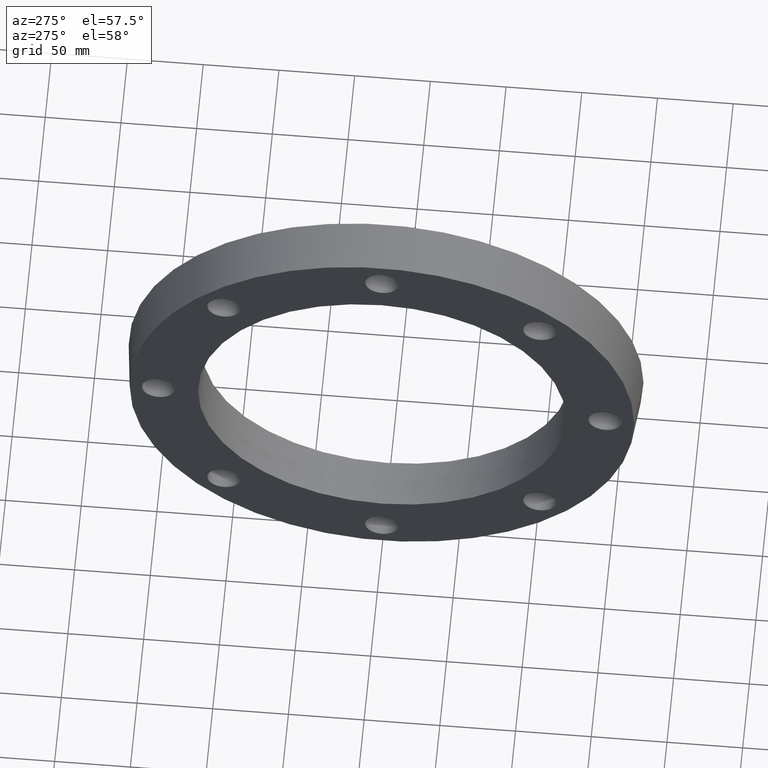
[diagram: clean part render]
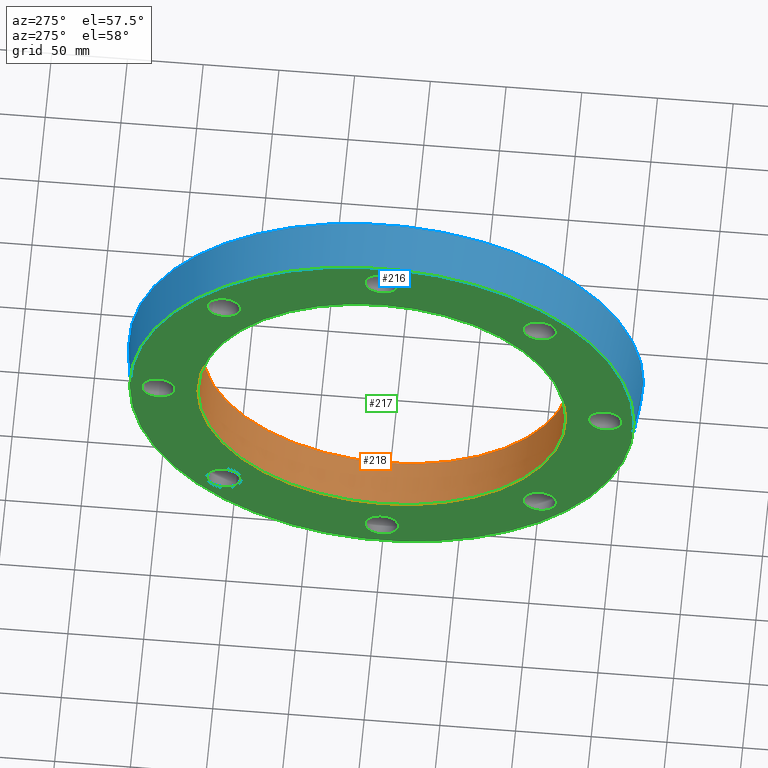
[diagram: same view with three faces highlighted in distinct colors, each labeled with its STEP entity id]
A machine part, auxiliary view with three faces highlighted in distinct colors.
Their STEP definitions:

[orange] entity #218 — the highlighted cylindrical surface (bore or boss wall) has radius 121.5 mm, axis along (-1, 0, 0).
#45=FACE_BOUND('',#97,.T.);
#57=FACE_OUTER_BOUND('',#96,.T.);
#96=EDGE_LOOP('',(#196));
#97=EDGE_LOOP('',(#197));
#115=CIRCLE('',#247,121.5);
#117=CIRCLE('',#251,121.5);
#135=VERTEX_POINT('',#363);
#137=VERTEX_POINT('',#369);
#155=EDGE_CURVE('',#135,#135,#115,.T.);
#157=EDGE_CURVE('',#137,#137,#117,.T.);
#196=ORIENTED_EDGE('',*,*,#155,.F.);
#197=ORIENTED_EDGE('',*,*,#157,.T.);
#206=CYLINDRICAL_SURFACE('',#252,121.5);
#218=ADVANCED_FACE('',(#57,#45),#206,.F.);
#247=AXIS2_PLACEMENT_3D('',#364,#307,#308);
#251=AXIS2_PLACEMENT_3D('',#370,#315,#316);
#252=AXIS2_PLACEMENT_3D('',#371,#317,#318);
#307=DIRECTION('center_axis',(-1.,0.,0.));
#308=DIRECTION('ref_axis',(0.,0.,1.));
#315=DIRECTION('center_axis',(-1.,0.,0.));
#316=DIRECTION('ref_axis',(0.,0.,1.));
#317=DIRECTION('center_axis',(-1.,0.,0.));
#318=DIRECTION('ref_axis',(0.,-1.,0.));
#363=CARTESIAN_POINT('',(16.,-121.5,0.));
#364=CARTESIAN_POINT('Origin',(16.,0.,0.));
#369=CARTESIAN_POINT('',(-16.,-121.5,0.));
#370=CARTESIAN_POINT('Origin',(-16.,0.,0.));
#371=CARTESIAN_POINT('Origin',(0.,0.,0.));

[blue] entity #216 — the highlighted conical surface has half-angle 6.065 deg.
#15=CONICAL_SURFACE('',#248,168.3,6.06492244544795);
#35=FACE_BOUND('',#85,.T.);
#55=FACE_OUTER_BOUND('',#84,.T.);
#84=EDGE_LOOP('',(#184));
#85=EDGE_LOOP('',(#185));
#114=CIRCLE('',#246,170.);
#116=CIRCLE('',#249,166.6);
#134=VERTEX_POINT('',#361);
#136=VERTEX_POINT('',#366);
#154=EDGE_CURVE('',#134,#134,#114,.T.);
#156=EDGE_CURVE('',#136,#136,#116,.T.);
#184=ORIENTED_EDGE('',*,*,#156,.F.);
#185=ORIENTED_EDGE('',*,*,#154,.T.);
#216=ADVANCED_FACE('',(#55,#35),#15,.T.);
#246=AXIS2_PLACEMENT_3D('',#362,#305,#306);
#248=AXIS2_PLACEMENT_3D('',#365,#309,#310);
#249=AXIS2_PLACEMENT_3D('',#367,#311,#312);
#305=DIRECTION('center_axis',(-1.,0.,0.));
#306=DIRECTION('ref_axis',(0.,0.,1.));
#309=DIRECTION('center_axis',(1.,0.,0.));
#310=DIRECTION('ref_axis',(0.,-1.,0.));
#311=DIRECTION('center_axis',(-1.,0.,0.));
#312=DIRECTION('ref_axis',(0.,0.,1.));
#361=CARTESIAN_POINT('',(16.,-170.,0.));
#362=CARTESIAN_POINT('Origin',(16.,0.,0.));
#365=CARTESIAN_POINT('Origin',(1.33226762955019E-14,0.,0.));
#366=CARTESIAN_POINT('',(-16.,-166.6,0.));
#367=CARTESIAN_POINT('Origin',(-16.,0.,0.));

[green] entity #217 — the highlighted planar face has unit normal (-1, 0, 0).
#17=PLANE('',#250);
#36=FACE_BOUND('',#87,.T.);
#37=FACE_BOUND('',#88,.T.);
#38=FACE_BOUND('',#89,.T.);
#39=FACE_BOUND('',#90,.T.);
#40=FACE_BOUND('',#91,.T.);
#41=FACE_BOUND('',#92,.T.);
#42=FACE_BOUND('',#93,.T.);
#43=FACE_BOUND('',#94,.T.);
#44=FACE_BOUND('',#95,.T.);
#56=FACE_OUTER_BOUND('',#86,.T.);
#86=EDGE_LOOP('',(#186));
#87=EDGE_LOOP('',(#187));
#88=EDGE_LOOP('',(#188));
#89=EDGE_LOOP('',(#189));
#90=EDGE_LOOP('',(#190));
#91=EDGE_LOOP('',(#191));
#92=EDGE_LOOP('',(#192));
#93=EDGE_LOOP('',(#193));
#94=EDGE_LOOP('',(#194));
#95=EDGE_LOOP('',(#195));
#98=CIRCLE('',#222,11.);
#100=CIRCLE('',#225,11.);
#102=CIRCLE('',#228,11.);
#104=CIRCLE('',#231,11.);
#106=CIRCLE('',#234,11.);
#108=CIRCLE('',#237,11.);
#110=CIRCLE('',#240,11.);
#112=CIRCLE('',#243,11.);
#116=CIRCLE('',#249,166.6);
#117=CIRCLE('',#251,121.5);
#118=VERTEX_POINT('',#321);
#120=VERTEX_POINT('',#326);
#122=VERTEX_POINT('',#331);
#124=VERTEX_POINT('',#336);
#126=VERTEX_POINT('',#341);
#128=VERTEX_POINT('',#346);
#130=VERTEX_POINT('',#351);
#132=VERTEX_POINT('',#356);
#136=VERTEX_POINT('',#366);
#137=VERTEX_POINT('',#369);
#138=EDGE_CURVE('',#118,#118,#98,.T.);
#140=EDGE_CURVE('',#120,#120,#100,.T.);
#142=EDGE_CURVE('',#122,#122,#102,.T.);
#144=EDGE_CURVE('',#124,#124,#104,.T.);
#146=EDGE_CURVE('',#126,#126,#106,.T.);
#148=EDGE_CURVE('',#128,#128,#108,.T.);
#150=EDGE_CURVE('',#130,#130,#110,.T.);
#152=EDGE_CURVE('',#132,#132,#112,.T.);
#156=EDGE_CURVE('',#136,#136,#116,.T.);
#157=EDGE_CURVE('',#137,#137,#117,.T.);
#186=ORIENTED_EDGE('',*,*,#156,.T.);
#187=ORIENTED_EDGE('',*,*,#138,.T.);
#188=ORIENTED_EDGE('',*,*,#140,.T.);
#189=ORIENTED_EDGE('',*,*,#142,.T.);
#190=ORIENTED_EDGE('',*,*,#144,.T.);
#191=ORIENTED_EDGE('',*,*,#146,.T.);
#192=ORIENTED_EDGE('',*,*,#148,.T.);
#193=ORIENTED_EDGE('',*,*,#150,.T.);
#194=ORIENTED_EDGE('',*,*,#152,.T.);
#195=ORIENTED_EDGE('',*,*,#157,.F.);
#217=ADVANCED_FACE('',(#56,#36,#37,#38,#39,#40,#41,#42,#43,#44),#17,.T.);
#222=AXIS2_PLACEMENT_3D('',#322,#257,#258);
#225=AXIS2_PLACEMENT_3D('',#327,#263,#264);
#228=AXIS2_PLACEMENT_3D('',#332,#269,#270);
#231=AXIS2_PLACEMENT_3D('',#337,#275,#276);
#234=AXIS2_PLACEMENT_3D('',#342,#281,#282);
#237=AXIS2_PLACEMENT_3D('',#347,#287,#288);
#240=AXIS2_PLACEMENT_3D('',#352,#293,#294);
#243=AXIS2_PLACEMENT_3D('',#357,#299,#300);
#249=AXIS2_PLACEMENT_3D('',#367,#311,#312);
#250=AXIS2_PLACEMENT_3D('',#368,#313,#314);
#251=AXIS2_PLACEMENT_3D('',#370,#315,#316);
#257=DIRECTION('center_axis',(1.,0.,0.));
#258=DIRECTION('ref_axis',(0.,-0.707106781186548,0.707106781186547));
#263=DIRECTION('center_axis',(1.,0.,0.));
#264=DIRECTION('ref_axis',(0.,-1.,-2.01858731750028E-16));
#269=DIRECTION('center_axis',(1.,0.,0.));
#270=DIRECTION('ref_axis',(0.,-0.707106781186547,-0.707106781186548));
#275=DIRECTION('center_axis',(1.,0.,0.));
#276=DIRECTION('ref_axis',(0.,2.01858731750028E-16,-1.));
#281=DIRECTION('center_axis',(1.,0.,0.));
#282=DIRECTION('ref_axis',(0.,0.707106781186548,-0.707106781186547));
#287=DIRECTION('center_axis',(1.,0.,0.));
#288=DIRECTION('ref_axis',(0.,1.,0.));
#293=DIRECTION('center_axis',(1.,0.,0.));
#294=DIRECTION('ref_axis',(0.,0.707106781186547,0.707106781186548));
#299=DIRECTION('center_axis',(1.,0.,0.));
#300=DIRECTION('ref_axis',(0.,0.,1.));
#311=DIRECTION('center_axis',(-1.,0.,0.));
#312=DIRECTION('ref_axis',(0.,0.,1.));
#313=DIRECTION('center_axis',(-1.,0.,0.));
#314=DIRECTION('ref_axis',(0.,0.,1.));
#315=DIRECTION('center_axis',(-1.,0.,0.));
#316=DIRECTION('ref_axis',(0.,0.,1.));
#321=CARTESIAN_POINT('',(-16.,112.076424818068,96.5200756319638));
#322=CARTESIAN_POINT('Origin',(-16.,104.298250225016,104.298250225016));
#326=CARTESIAN_POINT('',(-16.,11.,147.5));
#327=CARTESIAN_POINT('Origin',(-16.,-2.66453525910038E-14,147.5));
#331=CARTESIAN_POINT('',(-16.,-96.5200756319638,112.076424818068));
#332=CARTESIAN_POINT('Origin',(-16.,-104.298250225016,104.298250225016));
#336=CARTESIAN_POINT('',(-16.,-147.5,11.));
#337=CARTESIAN_POINT('Origin',(-16.,-147.5,-2.66453525910038E-14));
#341=CARTESIAN_POINT('',(-16.,-112.076424818068,-96.5200756319637));
#342=CARTESIAN_POINT('Origin',(-16.,-104.298250225016,-104.298250225016));
#346=CARTESIAN_POINT('',(-16.,-11.,-147.5));
#347=CARTESIAN_POINT('Origin',(-16.,0.,-147.5));
#351=CARTESIAN_POINT('',(-16.,96.5200756319637,-112.076424818068));
#352=CARTESIAN_POINT('Origin',(-16.,104.298250225016,-104.298250225016));
#356=CARTESIAN_POINT('',(-16.,147.5,-11.));
#357=CARTESIAN_POINT('Origin',(-16.,147.5,0.));
#366=CARTESIAN_POINT('',(-16.,-166.6,0.));
#367=CARTESIAN_POINT('Origin',(-16.,0.,0.));
#368=CARTESIAN_POINT('Origin',(-16.,-121.5,0.));
#369=CARTESIAN_POINT('',(-16.,-121.5,0.));
#370=CARTESIAN_POINT('Origin',(-16.,0.,0.));